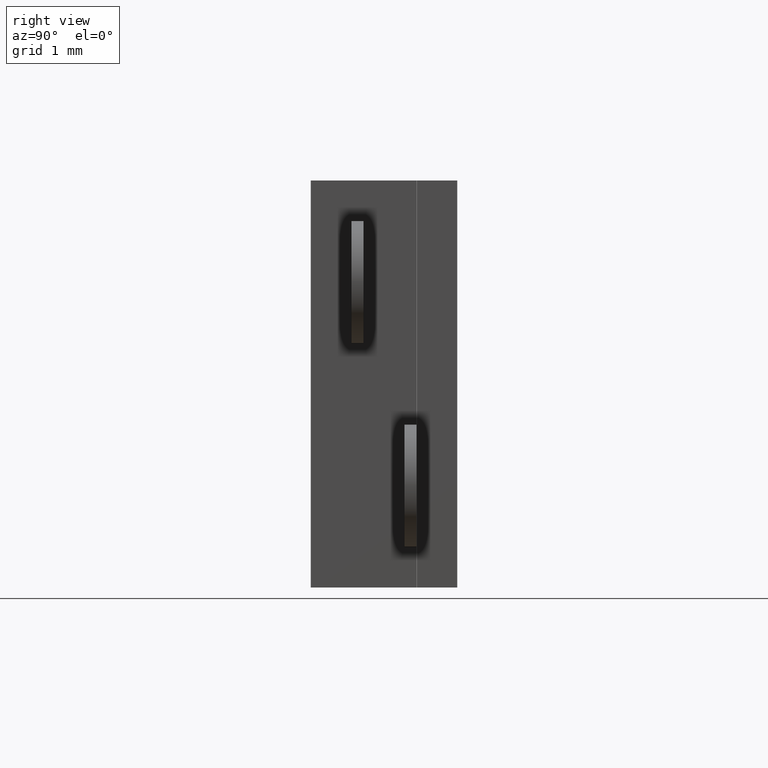
[diagram: clean part render]
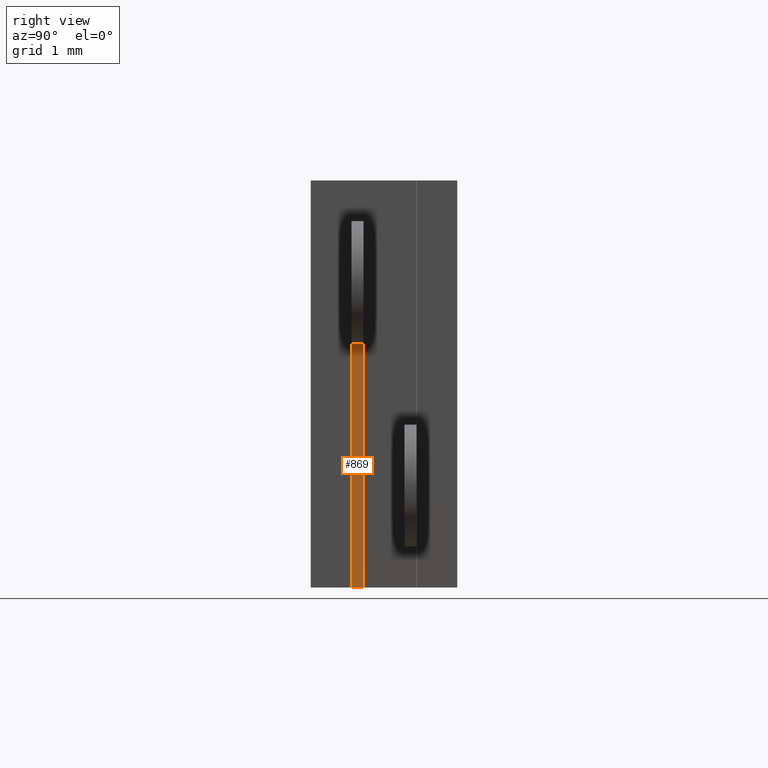
[diagram: same view with one face highlighted and labeled with its STEP entity id]
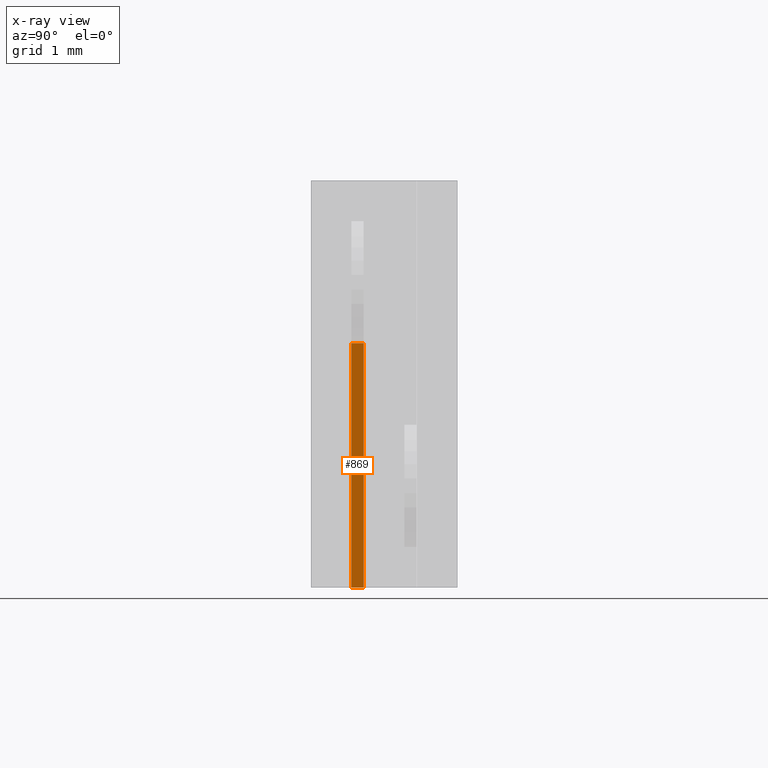
[diagram: x-ray of the same camera — body ghosted, the highlighted face saturated]
A machine part, right view. The second image highlights one B-rep face of the part: STEP entity #869.
The next image is the same camera in x-ray: the body ghosted, the highlighted face saturated — about 0% of this face is hidden behind the body in this view.
In plain terms, the highlighted planar face has unit normal (-1, 0, 0).
Its self-contained STEP definition (entity closure, byte-faithful):
#37 = CARTESIAN_POINT ( 'NONE',  ( 2.499999999999999600, -0.1499999999999999900, 0.5000000000000000000 ) ) ;
#42 = VECTOR ( 'NONE', #1362, 1000.000000000000000 ) ;
#91 = LINE ( 'NONE', #637, #521 ) ;
#93 = CARTESIAN_POINT ( 'NONE',  ( 2.499999999999999600, -0.1499999999999999900, -2.500000000000000000 ) ) ;
#96 = EDGE_CURVE ( 'NONE', #1001, #342, #504, .T. ) ;
#114 = DIRECTION ( 'NONE',  ( -0.0000000000000000000, -0.0000000000000000000, 1.000000000000000000 ) ) ;
#194 = VECTOR ( 'NONE', #251, 1000.000000000000000 ) ;
#242 = EDGE_CURVE ( 'NONE', #808, #1078, #91, .T. ) ;
#251 = DIRECTION ( 'NONE',  ( -0.0000000000000000000, -0.0000000000000000000, 1.000000000000000000 ) ) ;
#342 = VERTEX_POINT ( 'NONE', #781 ) ;
#404 = DIRECTION ( 'NONE',  ( 0.0000000000000000000, 1.000000000000000000, -0.0000000000000000000 ) ) ;
#416 = EDGE_CURVE ( 'NONE', #808, #1001, #1119, .T. ) ;
#504 = LINE ( 'NONE', #752, #194 ) ;
#521 = VECTOR ( 'NONE', #114, 1000.000000000000000 ) ;
#557 = DIRECTION ( 'NONE',  ( 0.0000000000000000000, 0.0000000000000000000, 1.000000000000000000 ) ) ;
#578 = FACE_OUTER_BOUND ( 'NONE', #987, .T. ) ;
#598 = VECTOR ( 'NONE', #404, 1000.000000000000000 ) ;
#637 = CARTESIAN_POINT ( 'NONE',  ( 2.499999999999999600, -0.1499999999999999900, 0.5000000000000000000 ) ) ;
#645 = AXIS2_PLACEMENT_3D ( 'NONE', #37, #967, #557 ) ;
#662 = CARTESIAN_POINT ( 'NONE',  ( 2.499999999999999600, -0.1499999999999999900, -2.500000000000000000 ) ) ;
#696 = ORIENTED_EDGE ( 'NONE', *, *, #416, .T. ) ;
#752 = CARTESIAN_POINT ( 'NONE',  ( 2.499999999999999600, -0.0000000000000000000, 0.5000000000000000000 ) ) ;
#754 = PLANE ( 'NONE',  #645 ) ;
#781 = CARTESIAN_POINT ( 'NONE',  ( 2.499999999999999600, -0.0000000000000000000, 0.5000000000000000000 ) ) ;
#808 = VERTEX_POINT ( 'NONE', #662 ) ;
#869 = ADVANCED_FACE ( 'NONE', ( #578 ), #754, .F. ) ;
#874 = LINE ( 'NONE', #1340, #598 ) ;
#967 = DIRECTION ( 'NONE',  ( -1.000000000000000000, 0.0000000000000000000, 0.0000000000000000000 ) ) ;
#987 = EDGE_LOOP ( 'NONE', ( #1097, #1072, #1032, #696 ) ) ;
#1001 = VERTEX_POINT ( 'NONE', #1268 ) ;
#1032 = ORIENTED_EDGE ( 'NONE', *, *, #242, .F. ) ;
#1072 = ORIENTED_EDGE ( 'NONE', *, *, #1177, .F. ) ;
#1078 = VERTEX_POINT ( 'NONE', #1260 ) ;
#1097 = ORIENTED_EDGE ( 'NONE', *, *, #96, .T. ) ;
#1119 = LINE ( 'NONE', #93, #42 ) ;
#1177 = EDGE_CURVE ( 'NONE', #1078, #342, #874, .T. ) ;
#1260 = CARTESIAN_POINT ( 'NONE',  ( 2.499999999999999600, -0.1499999999999999900, 0.5000000000000000000 ) ) ;
#1268 = CARTESIAN_POINT ( 'NONE',  ( 2.499999999999999600, 0.0000000000000000000, -2.500000000000000000 ) ) ;
#1340 = CARTESIAN_POINT ( 'NONE',  ( 2.499999999999999600, -0.1499999999999999900, 0.5000000000000000000 ) ) ;
#1362 = DIRECTION ( 'NONE',  ( 0.0000000000000000000, 1.000000000000000000, -0.0000000000000000000 ) ) ;